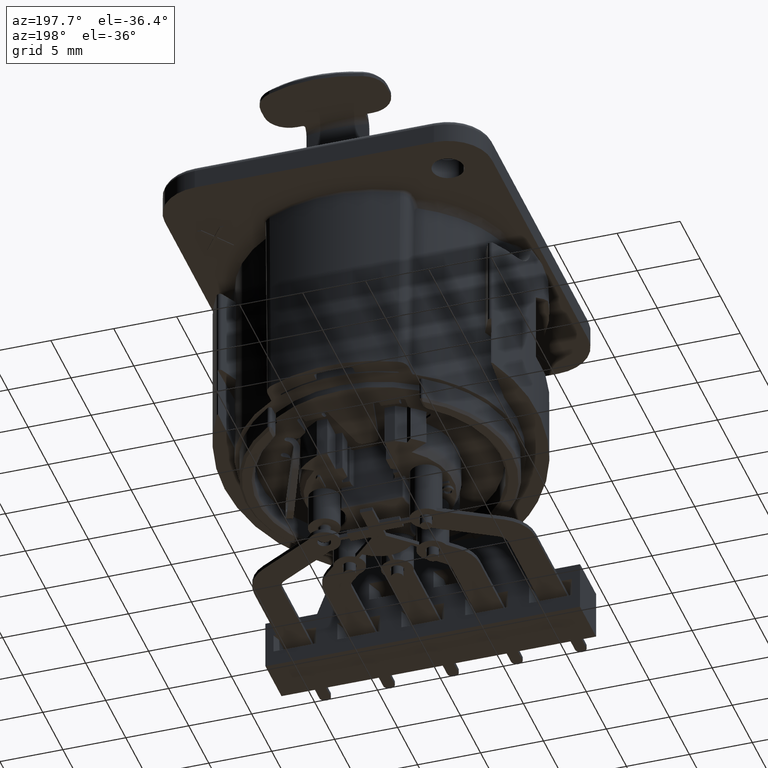
[diagram: clean part render]
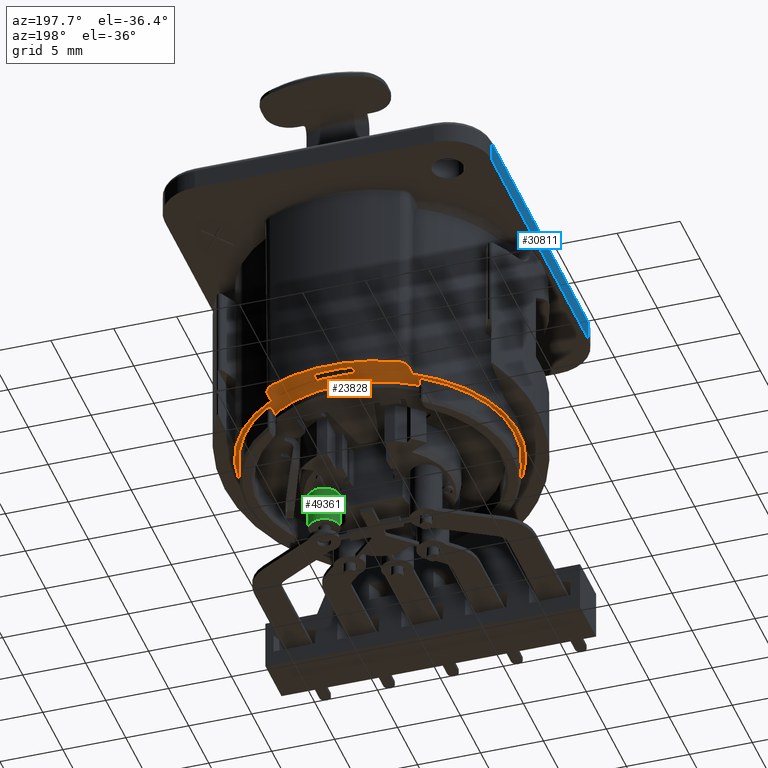
[diagram: same view with three faces highlighted in distinct colors, each labeled with its STEP entity id]
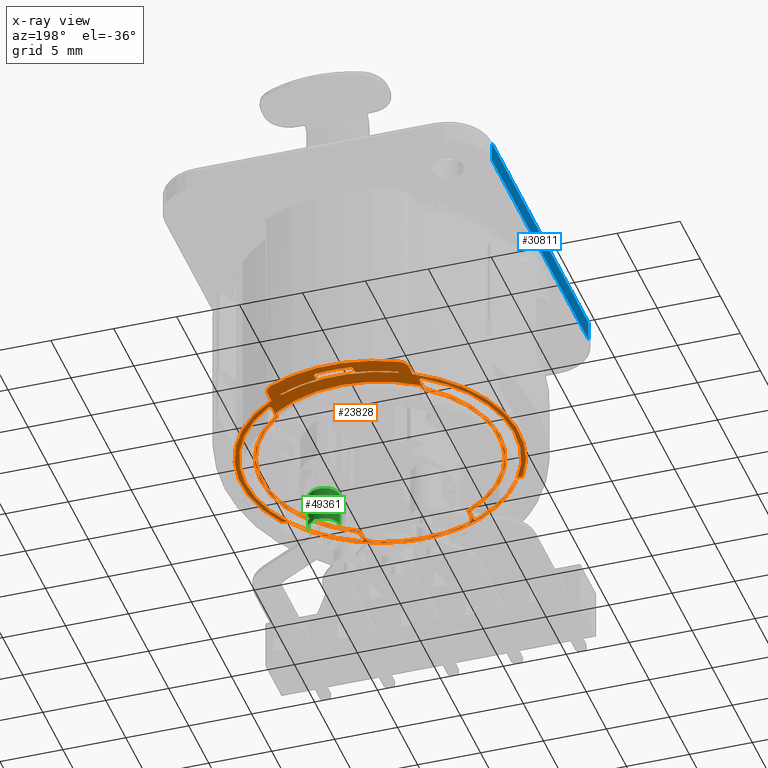
[diagram: x-ray of the same camera — body ghosted, the three highlighted faces saturated]
A machine part, auxiliary view with three faces highlighted in distinct colors.
The next image is the same camera in x-ray (body ghosted, the three faces saturated) — at least one of them is partly hidden behind the body in this view.
Their STEP definitions:

[orange] entity #23828 — the highlighted planar face has unit normal (0, 0, -1).
#9=CARTESIAN_POINT('',(0.E0,0.E0,-1.61E1));
#10=DIRECTION('',(0.E0,0.E0,1.E0));
#11=DIRECTION('',(4.258354678450E-1,9.048006157852E-1,0.E0));
#12=AXIS2_PLACEMENT_3D('',#9,#10,#11);
#14=DIRECTION('',(0.E0,-1.E0,6.113145145470E-14));
#15=VECTOR('',#14,5.230437417783E-1);
#16=CARTESIAN_POINT('',(-1.539754077808E0,1.156103249230E1,-1.61E1));
#17=LINE('',#16,#15);
#18=CARTESIAN_POINT('',(0.E0,9.E-1,-1.61E1));
#19=DIRECTION('',(0.E0,0.E0,1.E0));
#20=DIRECTION('',(1.246877463561E-1,9.921960319960E-1,0.E0));
#21=AXIS2_PLACEMENT_3D('',#18,#19,#20);
#23=DIRECTION('',(0.E0,1.E0,-6.113145145470E-14));
#24=VECTOR('',#23,5.230437417783E-1);
#25=CARTESIAN_POINT('',(1.539754077808E0,1.103798875052E1,-1.61E1));
#26=LINE('',#25,#24);
#27=DIRECTION('',(0.E0,1.E0,0.E0));
#28=VECTOR('',#27,9.404690249078E-1);
#29=CARTESIAN_POINT('',(-5.609497428569E0,9.504801134888E0,-1.61E1));
#30=LINE('',#29,#28);
#31=DIRECTION('',(0.E0,-1.E0,0.E0));
#32=VECTOR('',#31,9.404690249078E-1);
#33=CARTESIAN_POINT('',(5.609497428569E0,1.044527015980E1,-1.61E1));
#34=LINE('',#33,#32);
#35=CARTESIAN_POINT('',(5.044314075789E0,1.134580754619E1,-1.61E1));
#36=CARTESIAN_POINT('',(5.111700319880E0,1.131326651268E1,-1.61E1));
#37=CARTESIAN_POINT('',(5.236313421153E0,1.123529982837E1,-1.61E1));
#38=CARTESIAN_POINT('',(5.399343858419E0,1.107235001393E1,-1.61E1));
#39=CARTESIAN_POINT('',(5.517777364469E0,1.088349464585E1,-1.61E1));
#40=CARTESIAN_POINT('',(5.593418514380E0,1.066636128790E1,-1.61E1));
#41=CARTESIAN_POINT('',(5.609497428569E0,1.052017366136E1,-1.61E1));
#42=CARTESIAN_POINT('',(5.609497428569E0,1.044527015980E1,-1.61E1));
#44=CARTESIAN_POINT('',(0.E0,9.E-1,-1.61E1));
#45=DIRECTION('',(0.E0,0.E0,-1.E0));
#46=DIRECTION('',(-4.348546351574E-1,9.005006642319E-1,0.E0));
#47=AXIS2_PLACEMENT_3D('',#44,#45,#46);
#49=CARTESIAN_POINT('',(-5.609497428569E0,1.044527015980E1,-1.61E1));
#50=CARTESIAN_POINT('',(-5.609497428569E0,1.052009623410E1,-1.61E1));
#51=CARTESIAN_POINT('',(-5.593477728674E0,1.066620470709E1,-1.61E1));
#52=CARTESIAN_POINT('',(-5.517636581233E0,1.088386509639E1,-1.61E1));
#53=CARTESIAN_POINT('',(-5.399071468207E0,1.107263791928E1,-1.61E1));
#54=CARTESIAN_POINT('',(-5.236428528262E0,1.123517851199E1,-1.61E1));
#55=CARTESIAN_POINT('',(-5.111770075344E0,1.131323284866E1,-1.61E1));
#56=CARTESIAN_POINT('',(-5.044313930797E0,1.134580763732E1,-1.61E1));
#58=DIRECTION('',(0.E0,1.E0,0.E0));
#59=VECTOR('',#58,8.474999512721E-1);
#60=CARTESIAN_POINT('',(-5.85E0,7.725085377348E0,-1.61E1));
#61=LINE('',#60,#59);
#62=CARTESIAN_POINT('',(0.E0,0.E0,-1.61E1));
#63=DIRECTION('',(0.E0,0.E0,1.E0));
#64=DIRECTION('',(-6.349972204154E-1,7.725144206192E-1,0.E0));
#65=AXIS2_PLACEMENT_3D('',#62,#63,#64);
#67=DIRECTION('',(0.E0,1.E0,0.E0));
#68=VECTOR('',#67,7.094857101120E-1);
#69=CARTESIAN_POINT('',(-4.35E0,-9.454582372245E0,-1.61E1));
#70=LINE('',#69,#68);
#71=CARTESIAN_POINT('',(0.E0,0.E0,-1.61E1));
#72=DIRECTION('',(0.E0,0.E0,-1.E0));
#73=DIRECTION('',(-5.789473684211E-1,8.153649149910E-1,0.E0));
#74=AXIS2_PLACEMENT_3D('',#71,#72,#73);
#76=CARTESIAN_POINT('',(5.5E0,7.745966692415E0,-1.61E1));
#77=DIRECTION('',(0.E0,0.E0,-1.E0));
#78=DIRECTION('',(5.789473684211E-1,8.153649149910E-1,0.E0));
#79=AXIS2_PLACEMENT_3D('',#76,#77,#78);
#81=DIRECTION('',(0.E0,-1.E0,0.E0));
#82=VECTOR('',#81,1.719568561392E-1);
#83=CARTESIAN_POINT('',(5.8E0,7.745966692415E0,-1.61E1));
#84=LINE('',#83,#82);
#85=CARTESIAN_POINT('',(6.1E0,7.574009836276E0,-1.61E1));
#86=DIRECTION('',(0.E0,0.E0,1.E0));
#87=DIRECTION('',(-1.E0,0.E0,0.E0));
#88=AXIS2_PLACEMENT_3D('',#85,#86,#87);
#90=CARTESIAN_POINT('',(0.E0,0.E0,-1.61E1));
#91=DIRECTION('',(0.E0,0.E0,-1.E0));
#92=DIRECTION('',(6.272493573265E-1,7.788184921620E-1,0.E0));
#93=AXIS2_PLACEMENT_3D('',#90,#91,#92);
#95=CARTESIAN_POINT('',(4.6E0,-8.568291836767E0,-1.61E1));
#96=DIRECTION('',(0.E0,0.E0,1.E0));
#97=DIRECTION('',(-4.730077120823E-1,8.810582865570E-1,0.E0));
#98=AXIS2_PLACEMENT_3D('',#95,#96,#97);
#100=DIRECTION('',(0.E0,-1.E0,0.E0));
#101=VECTOR('',#100,5.531115640266E-1);
#102=CARTESIAN_POINT('',(4.3E0,-8.568291836767E0,-1.61E1));
#103=LINE('',#102,#101);
#104=CARTESIAN_POINT('',(3.3E0,-9.121403400793E0,-1.61E1));
#105=DIRECTION('',(0.E0,0.E0,-1.E0));
#106=DIRECTION('',(1.E0,0.E0,0.E0));
#107=AXIS2_PLACEMENT_3D('',#104,#105,#106);
#109=CARTESIAN_POINT('',(-3.3E0,-9.121403400793E0,-1.61E1));
#110=DIRECTION('',(0.E0,0.E0,-1.E0));
#111=DIRECTION('',(-3.402070752952E-1,-9.403505441691E-1,0.E0));
#112=AXIS2_PLACEMENT_3D('',#109,#110,#111);
#114=DIRECTION('',(0.E0,1.E0,0.E0));
#115=VECTOR('',#114,5.531115640266E-1);
#116=CARTESIAN_POINT('',(-4.3E0,-9.121403400793E0,-1.61E1));
#117=LINE('',#116,#115);
#118=CARTESIAN_POINT('',(-4.6E0,-8.568291836767E0,-1.61E1));
#119=DIRECTION('',(0.E0,0.E0,1.E0));
#120=DIRECTION('',(1.E0,0.E0,0.E0));
#121=AXIS2_PLACEMENT_3D('',#118,#119,#120);
#123=CARTESIAN_POINT('',(0.E0,0.E0,-1.61E1));
#124=DIRECTION('',(0.E0,0.E0,-1.E0));
#125=DIRECTION('',(-4.730077120823E-1,-8.810582865570E-1,0.E0));
#126=AXIS2_PLACEMENT_3D('',#123,#124,#125);
#128=CARTESIAN_POINT('',(-6.1E0,7.574009836276E0,-1.61E1));
#129=DIRECTION('',(0.E0,0.E0,1.E0));
#130=DIRECTION('',(6.272493573265E-1,-7.788184921620E-1,0.E0));
#131=AXIS2_PLACEMENT_3D('',#128,#129,#130);
#133=DIRECTION('',(0.E0,1.E0,0.E0));
#134=VECTOR('',#133,1.719568561392E-1);
#135=CARTESIAN_POINT('',(-5.8E0,7.574009836276E0,-1.61E1));
#136=LINE('',#135,#134);
#137=CARTESIAN_POINT('',(-5.5E0,7.745966692415E0,-1.61E1));
#138=DIRECTION('',(0.E0,0.E0,-1.E0));
#139=DIRECTION('',(-1.E0,0.E0,0.E0));
#140=AXIS2_PLACEMENT_3D('',#137,#138,#139);
#142=DIRECTION('',(0.E0,-1.E0,0.E0));
#143=VECTOR('',#142,7.094857101120E-1);
#144=CARTESIAN_POINT('',(4.35E0,-8.745096662133E0,-1.61E1));
#145=LINE('',#144,#143);
#146=CARTESIAN_POINT('',(0.E0,0.E0,-1.61E1));
#147=DIRECTION('',(0.E0,0.E0,1.E0));
#148=DIRECTION('',(4.849960781204E-1,-8.745163258669E-1,0.E0));
#149=AXIS2_PLACEMENT_3D('',#146,#147,#148);
#151=DIRECTION('',(0.E0,-1.E0,0.E0));
#152=VECTOR('',#151,8.474999512721E-1);
#153=CARTESIAN_POINT('',(5.85E0,8.572585328620E0,-1.61E1));
#154=LINE('',#153,#152);
#220=CARTESIAN_POINT('',(4.699798227575E0,9.985970290111E0,-1.61E1));
#222=CARTESIAN_POINT('',(4.699798227575E0,9.985970290111E0,-1.61E1));
#223=CARTESIAN_POINT('',(4.698661823217E0,1.001124814441E1,-1.61E1));
#224=CARTESIAN_POINT('',(4.687813458600E0,1.005786153870E1,-1.61E1));
#225=CARTESIAN_POINT('',(4.645078979001E0,1.012113313502E1,-1.61E1));
#226=CARTESIAN_POINT('',(4.605542113592E0,1.014877699794E1,-1.61E1));
#227=CARTESIAN_POINT('',(4.582227094572E0,1.015929295745E1,-1.61E1));
#246=CARTESIAN_POINT('',(0.E0,0.E0,-1.61E1));
#247=DIRECTION('',(0.E0,0.E0,-1.E0));
#248=DIRECTION('',(5.082607478455E-1,8.612032351307E-1,0.E0));
#249=AXIS2_PLACEMENT_3D('',#246,#247,#248);
#279=CARTESIAN_POINT('',(0.E0,0.E0,-1.61E1));
#280=DIRECTION('',(0.E0,0.E0,-1.E0));
#281=DIRECTION('',(-8.671981930823E-1,-4.979631451371E-1,0.E0));
#282=AXIS2_PLACEMENT_3D('',#279,#280,#281);
#630=DIRECTION('',(1.E0,1.170303486048E-12,9.269730582556E-14));
#631=VECTOR('',#630,3.832596478571E-1);
#632=CARTESIAN_POINT('',(-9.570965404618E0,-5.495846362344E0,-1.61E1));
#633=LINE('',#632,#631);
#657=DIRECTION('',(1.E0,-1.167986053402E-12,-9.269730582556E-14));
#658=VECTOR('',#657,3.832596478571E-1);
#659=CARTESIAN_POINT('',(9.187705756761E0,-5.495846362344E0,-1.61E1));
#660=LINE('',#659,#658);
#2566=CARTESIAN_POINT('',(0.E0,-2.E-1,-1.61E1));
#2567=DIRECTION('',(0.E0,0.E0,1.E0));
#2568=DIRECTION('',(-8.663795285007E-1,-4.993861357656E-1,0.E0));
#2569=AXIS2_PLACEMENT_3D('',#2566,#2567,#2568);
#3272=CARTESIAN_POINT('',(-5.609497428569E0,9.504801134888E0,-1.61E1));
#3655=CARTESIAN_POINT('',(5.609497428569E0,9.504801134888E0,-1.61E1));
#12737=CARTESIAN_POINT('',(4.582227094572E0,1.015929295745E1,-1.61E1));
#12743=CARTESIAN_POINT('',(0.E0,0.E0,-1.61E1));
#12744=DIRECTION('',(0.E0,0.E0,1.E0));
#12745=DIRECTION('',(4.111513745860E-1,9.115670832013E-1,0.E0));
#12746=AXIS2_PLACEMENT_3D('',#12743,#12744,#12745);
#12753=CARTESIAN_POINT('',(0.E0,0.E0,-1.61E1));
#12754=DIRECTION('',(0.E0,0.E0,1.E0));
#12755=DIRECTION('',(-1.381581507640E-1,9.904101803685E-1,0.E0));
#12756=AXIS2_PLACEMENT_3D('',#12753,#12754,#12755);
#12758=CARTESIAN_POINT('',(-4.582227145696E0,1.015929292136E1,-1.61E1));
#12868=CARTESIAN_POINT('',(1.539754077808E0,1.156103249230E1,-1.61E1));
#12869=CARTESIAN_POINT('',(1.539754077809E0,1.158613030402E1,-1.61E1));
#12870=CARTESIAN_POINT('',(1.530985323207E0,1.163283289599E1,-1.61E1));
#12871=CARTESIAN_POINT('',(1.492772841865E0,1.169676458114E1,-1.61E1));
#12872=CARTESIAN_POINT('',(1.435041961022E0,1.174155106445E1,-1.61E1));
#12873=CARTESIAN_POINT('',(1.389685451212E0,1.175631156638E1,-1.61E1));
#12874=CARTESIAN_POINT('',(1.364690676374E0,1.175945262122E1,-1.61E1));
#12895=CARTESIAN_POINT('',(-1.364690578159E0,1.175945265224E1,-1.61E1));
#12896=CARTESIAN_POINT('',(-1.389643914468E0,1.175631680492E1,-1.61E1));
#12897=CARTESIAN_POINT('',(-1.434949589008E0,1.174169633368E1,-1.61E1));
#12898=CARTESIAN_POINT('',(-1.493272117536E0,1.169618810914E1,-1.61E1));
#12899=CARTESIAN_POINT('',(-1.530819694211E0,1.163302446739E1,-1.61E1));
#12900=CARTESIAN_POINT('',(-1.539754077809E0,1.158620925261E1,-1.61E1));
#12901=CARTESIAN_POINT('',(-1.539754077808E0,1.156103249230E1,-1.61E1));
#12903=CARTESIAN_POINT('',(-4.699798227575E0,9.985970290111E0,-1.61E1));
#12910=CARTESIAN_POINT('',(-4.582227145696E0,1.015929292136E1,-1.61E1));
#12911=CARTESIAN_POINT('',(-4.605419305442E0,1.014883237604E1,-1.61E1));
#12912=CARTESIAN_POINT('',(-4.644846639622E0,1.012137124310E1,-1.61E1));
#12913=CARTESIAN_POINT('',(-4.687792022220E0,1.005797565911E1,-1.61E1));
#12914=CARTESIAN_POINT('',(-4.698659534809E0,1.001129904709E1,-1.61E1));
#12915=CARTESIAN_POINT('',(-4.699798227575E0,9.985970290111E0,-1.61E1));
#12957=CARTESIAN_POINT('',(-4.636740679148E0,-9.634761787363E0,-1.61E1));
#12958=CARTESIAN_POINT('',(-4.611306748229E0,-9.647001897160E0,-1.61E1));
#12959=CARTESIAN_POINT('',(-4.559961948753E0,-9.659565054700E0,-1.61E1));
#12960=CARTESIAN_POINT('',(-4.477779440617E0,-9.647089573724E0,-1.61E1));
#12961=CARTESIAN_POINT('',(-4.407844705591E0,-9.603143740863E0,-1.61E1));
#12962=CARTESIAN_POINT('',(-4.360963106711E0,-9.534547528451E0,-1.61E1));
#12963=CARTESIAN_POINT('',(-4.349999999113E0,-9.482820595942E0,-1.61E1));
#12964=CARTESIAN_POINT('',(-4.35E0,-9.454582372245E0,-1.61E1));
#13086=CARTESIAN_POINT('',(6.165332335243E0,8.735941625365E0,
-1.610000000001E1));
#13087=CARTESIAN_POINT('',(6.144699658589E0,8.750502998831E0,
-1.610000000001E1));
#13088=CARTESIAN_POINT('',(6.101200057495E0,8.770339919505E0,
-1.609999999999E1));
#13089=CARTESIAN_POINT('',(6.026595137833E0,8.775790264508E0,-1.61E1));
#13090=CARTESIAN_POINT('',(5.956037039782E0,8.754078419615E0,-1.61E1));
#13091=CARTESIAN_POINT('',(5.897494103293E0,8.708956936983E0,-1.61E1));
#13092=CARTESIAN_POINT('',(5.858885251557E0,8.644839290073E0,-1.61E1));
#13093=CARTESIAN_POINT('',(5.849999997804E0,8.597847252888E0,-1.61E1));
#13094=CARTESIAN_POINT('',(5.85E0,8.572585328620E0,-1.61E1));
#13126=CARTESIAN_POINT('',(5.85E0,7.725085377348E0,-1.61E1));
#13127=CARTESIAN_POINT('',(5.85E0,7.687626382980E0,-1.61E1));
#13128=CARTESIAN_POINT('',(5.858207133752E0,7.614816611169E0,-1.61E1));
#13129=CARTESIAN_POINT('',(5.894223159463E0,7.509705702808E0,-1.61E1));
#13130=CARTESIAN_POINT('',(5.952432933101E0,7.415354519965E0,-1.61E1));
#13131=CARTESIAN_POINT('',(6.003498372901E0,7.362704266258E0,-1.61E1));
#13132=CARTESIAN_POINT('',(6.032473593947E0,7.338886995883E0,-1.61E1));
#13175=CARTESIAN_POINT('',(4.607462742144E0,-8.307905095736E0,-1.61E1));
#13176=CARTESIAN_POINT('',(4.567691234834E0,-8.329961888155E0,-1.61E1));
#13177=CARTESIAN_POINT('',(4.497113834774E0,-8.382811955775E0,-1.61E1));
#13178=CARTESIAN_POINT('',(4.413994618368E0,-8.488241345883E0,-1.61E1));
#13179=CARTESIAN_POINT('',(4.361894061411E0,-8.612503085923E0,-1.61E1));
#13180=CARTESIAN_POINT('',(4.35E0,-8.699715027442E0,-1.61E1));
#13181=CARTESIAN_POINT('',(4.35E0,-8.745096662133E0,-1.61E1));
#13200=CARTESIAN_POINT('',(4.35E0,-9.454582372245E0,-1.61E1));
#13201=CARTESIAN_POINT('',(4.349999999113E0,-9.482820595942E0,-1.61E1));
#13202=CARTESIAN_POINT('',(4.360963106711E0,-9.534547528451E0,-1.61E1));
#13203=CARTESIAN_POINT('',(4.407844705591E0,-9.603143740863E0,-1.61E1));
#13204=CARTESIAN_POINT('',(4.477779440617E0,-9.647089573724E0,-1.61E1));
#13205=CARTESIAN_POINT('',(4.559961948753E0,-9.659565054700E0,-1.61E1));
#13206=CARTESIAN_POINT('',(4.611306748229E0,-9.647001897160E0,-1.61E1));
#13207=CARTESIAN_POINT('',(4.636740679148E0,-9.634761787363E0,-1.61E1));
#13214=CARTESIAN_POINT('',(0.E0,0.E0,-1.61E1));
#13215=DIRECTION('',(0.E0,0.E0,-1.E0));
#13216=DIRECTION('',(5.766073721627E-1,8.170213818301E-1,0.E0));
#13217=AXIS2_PLACEMENT_3D('',#13214,#13215,#13216);
#13236=CARTESIAN_POINT('',(0.E0,0.E0,-1.61E1));
#13237=DIRECTION('',(0.E0,0.E0,-1.E0));
#13238=DIRECTION('',(-4.336471602406E-1,-9.010827600255E-1,0.E0));
#13239=AXIS2_PLACEMENT_3D('',#13236,#13237,#13238);
#13274=CARTESIAN_POINT('',(-5.85E0,8.572585328620E0,-1.61E1));
#13275=CARTESIAN_POINT('',(-5.849999997804E0,8.597847252888E0,-1.61E1));
#13276=CARTESIAN_POINT('',(-5.858885251557E0,8.644839290072E0,-1.61E1));
#13277=CARTESIAN_POINT('',(-5.897494103294E0,8.708956936982E0,-1.61E1));
#13278=CARTESIAN_POINT('',(-5.956037039782E0,8.754078419614E0,-1.61E1));
#13279=CARTESIAN_POINT('',(-6.026595137833E0,8.775790264507E0,-1.61E1));
#13280=CARTESIAN_POINT('',(-6.101200057496E0,8.770339919504E0,
-1.609999999999E1));
#13281=CARTESIAN_POINT('',(-6.144699658589E0,8.750502998830E0,
-1.610000000001E1));
#13282=CARTESIAN_POINT('',(-6.165332335243E0,8.735941625365E0,
-1.610000000001E1));
#13331=CARTESIAN_POINT('',(-4.35E0,-8.745096662133E0,-1.61E1));
#13332=CARTESIAN_POINT('',(-4.35E0,-8.699715027442E0,-1.61E1));
#13333=CARTESIAN_POINT('',(-4.361894061411E0,-8.612503085923E0,-1.61E1));
#13334=CARTESIAN_POINT('',(-4.413994618368E0,-8.488241345883E0,-1.61E1));
#13335=CARTESIAN_POINT('',(-4.497113834774E0,-8.382811955775E0,-1.61E1));
#13336=CARTESIAN_POINT('',(-4.567691234834E0,-8.329961888155E0,-1.61E1));
#13337=CARTESIAN_POINT('',(-4.607462742144E0,-8.307905095736E0,-1.61E1));
#13347=CARTESIAN_POINT('',(-6.032473593947E0,7.338886995883E0,-1.61E1));
#13348=CARTESIAN_POINT('',(-6.003498372901E0,7.362704266258E0,-1.61E1));
#13349=CARTESIAN_POINT('',(-5.952432933101E0,7.415354519965E0,-1.61E1));
#13350=CARTESIAN_POINT('',(-5.894223159463E0,7.509705702808E0,-1.61E1));
#13351=CARTESIAN_POINT('',(-5.858207133752E0,7.614816611169E0,-1.61E1));
#13352=CARTESIAN_POINT('',(-5.85E0,7.687626382980E0,-1.61E1));
#13353=CARTESIAN_POINT('',(-5.85E0,7.725085377348E0,-1.61E1));
#13401=CARTESIAN_POINT('',(0.E0,0.E0,-1.61E1));
#13402=DIRECTION('',(0.E0,0.E0,-1.E0));
#13403=DIRECTION('',(3.402062687192E-1,-9.403508359778E-1,0.E0));
#13404=AXIS2_PLACEMENT_3D('',#13401,#13402,#13403);
#19267=CARTESIAN_POINT('',(-6.032473593947E0,7.338886995883E0,-1.61E1));
#19268=CARTESIAN_POINT('',(-4.607462742144E0,-8.307905095736E0,-1.61E1));
#19269=VERTEX_POINT('',#19267);
#19270=VERTEX_POINT('',#19268);
#19271=CARTESIAN_POINT('',(4.607462742144E0,-8.307905095736E0,-1.61E1));
#19272=CARTESIAN_POINT('',(6.032473593947E0,7.338886995883E0,-1.61E1));
#19273=VERTEX_POINT('',#19271);
#19274=VERTEX_POINT('',#19272);
#19275=CARTESIAN_POINT('',(-4.35E0,-9.454582372245E0,-1.61E1));
#19276=CARTESIAN_POINT('',(-4.35E0,-8.745096662133E0,-1.61E1));
#19277=VERTEX_POINT('',#19275);
#19278=VERTEX_POINT('',#19276);
#19279=CARTESIAN_POINT('',(-5.85E0,7.725085377348E0,-1.61E1));
#19280=CARTESIAN_POINT('',(-5.85E0,8.572585328620E0,-1.61E1));
#19281=VERTEX_POINT('',#19279);
#19282=VERTEX_POINT('',#19280);
#19283=CARTESIAN_POINT('',(5.85E0,8.572585328620E0,-1.61E1));
#19284=CARTESIAN_POINT('',(5.85E0,7.725085377348E0,-1.61E1));
#19285=VERTEX_POINT('',#19283);
#19286=VERTEX_POINT('',#19284);
#19287=CARTESIAN_POINT('',(4.35E0,-8.745096662133E0,-1.61E1));
#19288=CARTESIAN_POINT('',(4.35E0,-9.454582372245E0,-1.61E1));
#19289=VERTEX_POINT('',#19287);
#19290=VERTEX_POINT('',#19288);
#19403=VERTEX_POINT('',#49);
#19404=VERTEX_POINT('',#56);
#19405=VERTEX_POINT('',#35);
#19406=VERTEX_POINT('',#42);
#19419=VERTEX_POINT('',#12895);
#19420=VERTEX_POINT('',#12901);
#19421=VERTEX_POINT('',#12868);
#19422=VERTEX_POINT('',#12874);
#19427=VERTEX_POINT('',#12737);
#19432=VERTEX_POINT('',#12758);
#19433=CARTESIAN_POINT('',(1.539754077808E0,1.103798875052E1,-1.61E1));
#19434=VERTEX_POINT('',#19433);
#19435=CARTESIAN_POINT('',(-1.539754077808E0,1.103798875052E1,-1.61E1));
#19436=VERTEX_POINT('',#19435);
#22821=CARTESIAN_POINT('',(-4.458097686375E0,-8.303974350799E0,-1.61E1));
#22822=CARTESIAN_POINT('',(-5.911825192802E0,7.340364288627E0,-1.61E1));
#22823=VERTEX_POINT('',#22821);
#22824=VERTEX_POINT('',#22822);
#22825=CARTESIAN_POINT('',(5.911825192802E0,7.340364288627E0,-1.61E1));
#22826=CARTESIAN_POINT('',(4.458097686375E0,-8.303974350799E0,-1.61E1));
#22827=VERTEX_POINT('',#22825);
#22828=VERTEX_POINT('',#22826);
#22829=CARTESIAN_POINT('',(5.8E0,7.745966692415E0,-1.61E1));
#22830=CARTESIAN_POINT('',(5.8E0,7.574009836276E0,-1.61E1));
#22831=VERTEX_POINT('',#22829);
#22832=VERTEX_POINT('',#22830);
#22833=CARTESIAN_POINT('',(-5.8E0,7.574009836276E0,-1.61E1));
#22834=CARTESIAN_POINT('',(-5.8E0,7.745966692415E0,-1.61E1));
#22835=VERTEX_POINT('',#22833);
#22836=VERTEX_POINT('',#22834);
#22841=CARTESIAN_POINT('',(4.3E0,-8.568291836767E0,-1.61E1));
#22842=CARTESIAN_POINT('',(4.3E0,-9.121403400793E0,-1.61E1));
#22843=VERTEX_POINT('',#22841);
#22844=VERTEX_POINT('',#22842);
#22845=CARTESIAN_POINT('',(-4.3E0,-9.121403400793E0,-1.61E1));
#22846=CARTESIAN_POINT('',(-4.3E0,-8.568291836767E0,-1.61E1));
#22847=VERTEX_POINT('',#22845);
#22848=VERTEX_POINT('',#22846);
#22867=CARTESIAN_POINT('',(-5.673684210526E0,7.990576166912E0,-1.61E1));
#22868=VERTEX_POINT('',#22867);
#22869=CARTESIAN_POINT('',(5.673684210526E0,7.990576166912E0,-1.61E1));
#22870=VERTEX_POINT('',#22869);
#23348=CARTESIAN_POINT('',(6.165332332504E0,8.735941621508E0,-1.61E1));
#23349=CARTESIAN_POINT('',(4.636740678327E0,-9.634761785667E0,-1.61E1));
#23350=VERTEX_POINT('',#23348);
#23351=VERTEX_POINT('',#23349);
#23352=CARTESIAN_POINT('',(3.640207075295E0,-1.006175394496E1,-1.61E1));
#23353=CARTESIAN_POINT('',(-3.640207075295E0,-1.006175394496E1,-1.61E1));
#23354=VERTEX_POINT('',#23352);
#23355=VERTEX_POINT('',#23353);
#23356=CARTESIAN_POINT('',(-4.636740678327E0,-9.634761785667E0,-1.61E1));
#23357=CARTESIAN_POINT('',(-6.165332332504E0,8.735941621507E0,-1.61E1));
#23358=VERTEX_POINT('',#23356);
#23359=VERTEX_POINT('',#23357);
#23395=VERTEX_POINT('',#3655);
#23396=VERTEX_POINT('',#3272);
#23408=VERTEX_POINT('',#220);
#23409=VERTEX_POINT('',#12903);
#23443=CARTESIAN_POINT('',(-9.570965404618E0,-5.495846362344E0,-1.61E1));
#23444=CARTESIAN_POINT('',(-9.187705756761E0,-5.495846362344E0,-1.61E1));
#23445=VERTEX_POINT('',#23443);
#23446=VERTEX_POINT('',#23444);
#23447=CARTESIAN_POINT('',(9.187705756761E0,-5.495846362344E0,-1.61E1));
#23448=CARTESIAN_POINT('',(9.570965404618E0,-5.495846362344E0,-1.61E1));
#23449=VERTEX_POINT('',#23447);
#23450=VERTEX_POINT('',#23448);
#23709=CARTESIAN_POINT('',(0.E0,0.E0,-1.61E1));
#23710=DIRECTION('',(0.E0,0.E0,-1.E0));
#23711=DIRECTION('',(0.E0,-1.E0,0.E0));
#23712=AXIS2_PLACEMENT_3D('',#23709,#23710,#23711);
#23713=PLANE('',#23712);
#23715=ORIENTED_EDGE('',*,*,#23714,.F.);
#23717=ORIENTED_EDGE('',*,*,#23716,.F.);
#23719=ORIENTED_EDGE('',*,*,#23718,.T.);
#23721=ORIENTED_EDGE('',*,*,#23720,.T.);
#23723=ORIENTED_EDGE('',*,*,#23722,.T.);
#23725=ORIENTED_EDGE('',*,*,#23724,.F.);
#23727=ORIENTED_EDGE('',*,*,#23726,.F.);
#23729=ORIENTED_EDGE('',*,*,#23728,.F.);
#23731=ORIENTED_EDGE('',*,*,#23730,.F.);
#23733=ORIENTED_EDGE('',*,*,#23732,.F.);
#23734=EDGE_LOOP('',(#23715,#23717,#23719,#23721,#23723,#23725,#23727,#23729,
#23731,#23733));
#23735=FACE_OUTER_BOUND('',#23734,.F.);
#23737=ORIENTED_EDGE('',*,*,#23736,.F.);
#23739=ORIENTED_EDGE('',*,*,#23738,.T.);
#23741=ORIENTED_EDGE('',*,*,#23740,.F.);
#23743=ORIENTED_EDGE('',*,*,#23742,.F.);
#23745=ORIENTED_EDGE('',*,*,#23744,.F.);
#23747=ORIENTED_EDGE('',*,*,#23746,.F.);
#23749=ORIENTED_EDGE('',*,*,#23748,.F.);
#23751=ORIENTED_EDGE('',*,*,#23750,.F.);
#23753=ORIENTED_EDGE('',*,*,#23752,.F.);
#23755=ORIENTED_EDGE('',*,*,#23754,.F.);
#23756=EDGE_LOOP('',(#23737,#23739,#23741,#23743,#23745,#23747,#23749,#23751,
#23753,#23755));
#23757=FACE_BOUND('',#23756,.F.);
#23759=ORIENTED_EDGE('',*,*,#23758,.F.);
#23761=ORIENTED_EDGE('',*,*,#23760,.T.);
#23763=ORIENTED_EDGE('',*,*,#23762,.F.);
#23765=ORIENTED_EDGE('',*,*,#23764,.F.);
#23767=ORIENTED_EDGE('',*,*,#23766,.F.);
#23769=ORIENTED_EDGE('',*,*,#23768,.T.);
#23771=ORIENTED_EDGE('',*,*,#23770,.F.);
#23773=ORIENTED_EDGE('',*,*,#23772,.F.);
#23774=EDGE_LOOP('',(#23759,#23761,#23763,#23765,#23767,#23769,#23771,#23773));
#23775=FACE_BOUND('',#23774,.F.);
#23777=ORIENTED_EDGE('',*,*,#23776,.T.);
#23779=ORIENTED_EDGE('',*,*,#23778,.T.);
#23781=ORIENTED_EDGE('',*,*,#23780,.T.);
#23783=ORIENTED_EDGE('',*,*,#23782,.T.);
#23785=ORIENTED_EDGE('',*,*,#23784,.T.);
#23787=ORIENTED_EDGE('',*,*,#23786,.T.);
#23789=ORIENTED_EDGE('',*,*,#23788,.T.);
#23791=ORIENTED_EDGE('',*,*,#23790,.T.);
#23793=ORIENTED_EDGE('',*,*,#23792,.T.);
#23795=ORIENTED_EDGE('',*,*,#23794,.T.);
#23797=ORIENTED_EDGE('',*,*,#23796,.T.);
#23799=ORIENTED_EDGE('',*,*,#23798,.T.);
#23801=ORIENTED_EDGE('',*,*,#23800,.T.);
#23803=ORIENTED_EDGE('',*,*,#23802,.T.);
#23805=ORIENTED_EDGE('',*,*,#23804,.T.);
#23807=ORIENTED_EDGE('',*,*,#23806,.T.);
#23808=EDGE_LOOP('',(#23777,#23779,#23781,#23783,#23785,#23787,#23789,#23791,
#23793,#23795,#23797,#23799,#23801,#23803,#23805,#23807));
#23809=FACE_BOUND('',#23808,.F.);
#23811=ORIENTED_EDGE('',*,*,#23810,.F.);
#23813=ORIENTED_EDGE('',*,*,#23812,.T.);
#23815=ORIENTED_EDGE('',*,*,#23814,.F.);
#23817=ORIENTED_EDGE('',*,*,#23816,.F.);
#23819=ORIENTED_EDGE('',*,*,#23818,.F.);
#23821=ORIENTED_EDGE('',*,*,#23820,.T.);
#23823=ORIENTED_EDGE('',*,*,#23822,.F.);
#23825=ORIENTED_EDGE('',*,*,#23824,.F.);
#23826=EDGE_LOOP('',(#23811,#23813,#23815,#23817,#23819,#23821,#23823,#23825));
#23827=FACE_BOUND('',#23826,.F.);
#23828=ADVANCED_FACE('',(#23735,#23757,#23775,#23809,#23827),#23713,.T.);
#13=CIRCLE('',#12,1.103665284472E1);
#22=CIRCLE('',#21,1.094486600533E1);
#43=B_SPLINE_CURVE_WITH_KNOTS('',3,(#35,#36,#37,#38,#39,#40,#41,#42),
.UNSPECIFIED.,.F.,.F.,(4,1,1,1,1,4),(0.E0,2.E-1,4.E-1,6.E-1,8.E-1,1.E0),
.UNSPECIFIED.);
#48=CIRCLE('',#47,1.16E1);
#57=B_SPLINE_CURVE_WITH_KNOTS('',3,(#49,#50,#51,#52,#53,#54,#55,#56),
.UNSPECIFIED.,.F.,.F.,(4,1,1,1,1,4),(0.E0,2.E-1,4.E-1,6.E-1,8.E-1,1.E0),
.UNSPECIFIED.);
#66=CIRCLE('',#65,9.5E0);
#75=CIRCLE('',#74,9.8E0);
#80=CIRCLE('',#79,3.E-1);
#89=CIRCLE('',#88,3.E-1);
#94=CIRCLE('',#93,9.425E0);
#99=CIRCLE('',#98,3.E-1);
#108=CIRCLE('',#107,1.E0);
#113=CIRCLE('',#112,1.E0);
#122=CIRCLE('',#121,3.E-1);
#127=CIRCLE('',#126,9.425E0);
#132=CIRCLE('',#131,3.E-1);
#141=CIRCLE('',#140,3.E-1);
#150=CIRCLE('',#149,9.5E0);
#228=B_SPLINE_CURVE_WITH_KNOTS('',3,(#222,#223,#224,#225,#226,#227),
.UNSPECIFIED.,.F.,.F.,(4,1,1,4),(0.E0,3.333333333333E-1,6.666666666667E-1,1.E0),
.UNSPECIFIED.);
#250=CIRCLE('',#249,1.103665284472E1);
#283=CIRCLE('',#282,1.103665284472E1);
#2570=CIRCLE('',#2569,1.060471243205E1);
#12747=CIRCLE('',#12746,1.114486600533E1);
#12757=CIRCLE('',#12756,1.114486600533E1);
#12875=B_SPLINE_CURVE_WITH_KNOTS('',3,(#12868,#12869,#12870,#12871,#12872,
#12873,#12874),.UNSPECIFIED.,.F.,.F.,(4,1,1,1,4),(0.E0,2.5E-1,5.E-1,7.5E-1,
1.E0),.UNSPECIFIED.);
#12902=B_SPLINE_CURVE_WITH_KNOTS('',3,(#12895,#12896,#12897,#12898,#12899,
#12900,#12901),.UNSPECIFIED.,.F.,.F.,(4,1,1,1,4),(0.E0,2.5E-1,5.E-1,7.5E-1,
1.E0),.UNSPECIFIED.);
#12916=B_SPLINE_CURVE_WITH_KNOTS('',3,(#12910,#12911,#12912,#12913,#12914,
#12915),.UNSPECIFIED.,.F.,.F.,(4,1,1,4),(0.E0,3.333333333333E-1,
6.666666666667E-1,1.E0),.UNSPECIFIED.);
#12965=B_SPLINE_CURVE_WITH_KNOTS('',3,(#12957,#12958,#12959,#12960,#12961,
#12962,#12963,#12964),.UNSPECIFIED.,.F.,.F.,(4,1,1,1,1,4),(0.E0,2.E-1,4.E-1,
6.E-1,8.E-1,1.E0),.UNSPECIFIED.);
#13095=B_SPLINE_CURVE_WITH_KNOTS('',3,(#13086,#13087,#13088,#13089,#13090,
#13091,#13092,#13093,#13094),.UNSPECIFIED.,.F.,.F.,(4,1,1,1,1,1,4),(0.E0,
1.666666666667E-1,3.333333333333E-1,5.E-1,6.666666666667E-1,8.333333333333E-1,
1.E0),.UNSPECIFIED.);
#13133=B_SPLINE_CURVE_WITH_KNOTS('',3,(#13126,#13127,#13128,#13129,#13130,
#13131,#13132),.UNSPECIFIED.,.F.,.F.,(4,1,1,1,4),(0.E0,2.5E-1,5.E-1,7.5E-1,
1.E0),.UNSPECIFIED.);
#13182=B_SPLINE_CURVE_WITH_KNOTS('',3,(#13175,#13176,#13177,#13178,#13179,
#13180,#13181),.UNSPECIFIED.,.F.,.F.,(4,1,1,1,4),(0.E0,2.5E-1,5.E-1,7.5E-1,
1.E0),.UNSPECIFIED.);
#13208=B_SPLINE_CURVE_WITH_KNOTS('',3,(#13200,#13201,#13202,#13203,#13204,
#13205,#13206,#13207),.UNSPECIFIED.,.F.,.F.,(4,1,1,1,1,4),(0.E0,2.E-1,4.E-1,
6.E-1,8.E-1,1.E0),.UNSPECIFIED.);
#13218=CIRCLE('',#13217,1.069242716995E1);
#13240=CIRCLE('',#13239,1.069242716995E1);
#13283=B_SPLINE_CURVE_WITH_KNOTS('',3,(#13274,#13275,#13276,#13277,#13278,
#13279,#13280,#13281,#13282),.UNSPECIFIED.,.F.,.F.,(4,1,1,1,1,1,4),(0.E0,
1.666666666667E-1,3.333333333333E-1,5.E-1,6.666666666667E-1,8.333333333333E-1,
1.E0),.UNSPECIFIED.);
#13338=B_SPLINE_CURVE_WITH_KNOTS('',3,(#13331,#13332,#13333,#13334,#13335,
#13336,#13337),.UNSPECIFIED.,.F.,.F.,(4,1,1,1,4),(0.E0,2.5E-1,5.E-1,7.5E-1,
1.E0),.UNSPECIFIED.);
#13354=B_SPLINE_CURVE_WITH_KNOTS('',3,(#13347,#13348,#13349,#13350,#13351,
#13352,#13353),.UNSPECIFIED.,.F.,.F.,(4,1,1,1,4),(0.E0,2.5E-1,5.E-1,7.5E-1,
1.E0),.UNSPECIFIED.);
#13405=CIRCLE('',#13404,1.07E1);
#23714=EDGE_CURVE('',#23396,#19403,#30,.T.);
#23716=EDGE_CURVE('',#23445,#23396,#283,.T.);
#23718=EDGE_CURVE('',#23445,#23446,#633,.T.);
#23720=EDGE_CURVE('',#23446,#23449,#2570,.T.);
#23722=EDGE_CURVE('',#23449,#23450,#660,.T.);
#23724=EDGE_CURVE('',#23395,#23450,#250,.T.);
#23726=EDGE_CURVE('',#19406,#23395,#34,.T.);
#23728=EDGE_CURVE('',#19405,#19406,#43,.T.);
#23730=EDGE_CURVE('',#19404,#19405,#48,.T.);
#23732=EDGE_CURVE('',#19403,#19404,#57,.T.);
#23736=EDGE_CURVE('',#23408,#19427,#228,.T.);
#23738=EDGE_CURVE('',#23408,#23409,#13,.T.);
#23740=EDGE_CURVE('',#19432,#23409,#12916,.T.);
#23742=EDGE_CURVE('',#19436,#19432,#12757,.T.);
#23744=EDGE_CURVE('',#19420,#19436,#17,.T.);
#23746=EDGE_CURVE('',#19419,#19420,#12902,.T.);
#23748=EDGE_CURVE('',#19422,#19419,#22,.T.);
#23750=EDGE_CURVE('',#19421,#19422,#12875,.T.);
#23752=EDGE_CURVE('',#19434,#19421,#26,.T.);
#23754=EDGE_CURVE('',#19427,#19434,#12747,.T.);
#23758=EDGE_CURVE('',#23358,#19277,#12965,.T.);
#23760=EDGE_CURVE('',#23358,#23359,#13240,.T.);
#23762=EDGE_CURVE('',#19282,#23359,#13283,.T.);
#23764=EDGE_CURVE('',#19281,#19282,#61,.T.);
#23766=EDGE_CURVE('',#19269,#19281,#13354,.T.);
#23768=EDGE_CURVE('',#19269,#19270,#66,.T.);
#23770=EDGE_CURVE('',#19278,#19270,#13338,.T.);
#23772=EDGE_CURVE('',#19277,#19278,#70,.T.);
#23776=EDGE_CURVE('',#22868,#22870,#75,.T.);
#23778=EDGE_CURVE('',#22870,#22831,#80,.T.);
#23780=EDGE_CURVE('',#22831,#22832,#84,.T.);
#23782=EDGE_CURVE('',#22832,#22827,#89,.T.);
#23784=EDGE_CURVE('',#22827,#22828,#94,.T.);
#23786=EDGE_CURVE('',#22828,#22843,#99,.T.);
#23788=EDGE_CURVE('',#22843,#22844,#103,.T.);
#23790=EDGE_CURVE('',#22844,#23354,#108,.T.);
#23792=EDGE_CURVE('',#23354,#23355,#13405,.T.);
#23794=EDGE_CURVE('',#23355,#22847,#113,.T.);
#23796=EDGE_CURVE('',#22847,#22848,#117,.T.);
#23798=EDGE_CURVE('',#22848,#22823,#122,.T.);
#23800=EDGE_CURVE('',#22823,#22824,#127,.T.);
#23802=EDGE_CURVE('',#22824,#22835,#132,.T.);
#23804=EDGE_CURVE('',#22835,#22836,#136,.T.);
#23806=EDGE_CURVE('',#22836,#22868,#141,.T.);
#23810=EDGE_CURVE('',#23350,#19285,#13095,.T.);
#23812=EDGE_CURVE('',#23350,#23351,#13218,.T.);
#23814=EDGE_CURVE('',#19290,#23351,#13208,.T.);
#23816=EDGE_CURVE('',#19289,#19290,#145,.T.);
#23818=EDGE_CURVE('',#19273,#19289,#13182,.T.);
#23820=EDGE_CURVE('',#19273,#19274,#150,.T.);
#23822=EDGE_CURVE('',#19286,#19274,#13133,.T.);
#23824=EDGE_CURVE('',#19285,#19286,#154,.T.);

[blue] entity #30811 — the highlighted planar face has unit normal (1, 0, 0).
#1399=DIRECTION('',(0.E0,1.E0,0.E0));
#1400=VECTOR('',#1399,2.4E1);
#1401=CARTESIAN_POINT('',(-1.3E1,-1.11E1,0.E0));
#1402=LINE('',#1401,#1400);
#4807=DIRECTION('',(0.E0,-1.E0,0.E0));
#4808=VECTOR('',#4807,2.399999999934E1);
#4809=CARTESIAN_POINT('',(-1.3E1,1.289999999974E1,1.55E0));
#4810=LINE('',#4809,#4808);
#4811=DIRECTION('',(0.E0,-2.547261326600E-10,-1.E0));
#4812=VECTOR('',#4811,1.55E0);
#4813=CARTESIAN_POINT('',(-1.3E1,-1.109999999961E1,1.55E0));
#4814=LINE('',#4813,#4812);
#4820=DIRECTION('',(0.E0,1.685521972890E-10,-1.E0));
#4821=VECTOR('',#4820,1.55E0);
#4822=CARTESIAN_POINT('',(-1.3E1,1.289999999974E1,1.55E0));
#4823=LINE('',#4822,#4821);
#18813=CARTESIAN_POINT('',(-1.3E1,1.29E1,0.E0));
#18815=VERTEX_POINT('',#18813);
#18817=CARTESIAN_POINT('',(-1.3E1,-1.11E1,0.E0));
#18818=VERTEX_POINT('',#18817);
#19369=CARTESIAN_POINT('',(-1.3E1,1.29E1,1.55E0));
#19370=VERTEX_POINT('',#19369);
#19373=CARTESIAN_POINT('',(-1.3E1,-1.109999999961E1,1.55E0));
#19374=VERTEX_POINT('',#19373);
#30799=CARTESIAN_POINT('',(-1.3E1,-1.11E1,4.7E0));
#30800=DIRECTION('',(1.E0,0.E0,0.E0));
#30801=DIRECTION('',(0.E0,1.E0,0.E0));
#30802=AXIS2_PLACEMENT_3D('',#30799,#30800,#30801);
#30803=PLANE('',#30802);
#30804=ORIENTED_EDGE('',*,*,#25859,.T.);
#30805=ORIENTED_EDGE('',*,*,#30794,.T.);
#30806=ORIENTED_EDGE('',*,*,#24965,.T.);
#30808=ORIENTED_EDGE('',*,*,#30807,.F.);
#30809=EDGE_LOOP('',(#30804,#30805,#30806,#30808));
#30810=FACE_OUTER_BOUND('',#30809,.F.);
#30811=ADVANCED_FACE('',(#30810),#30803,.F.);
#24965=EDGE_CURVE('',#18818,#18815,#1402,.T.);
#25859=EDGE_CURVE('',#19370,#19374,#4810,.T.);
#30794=EDGE_CURVE('',#19374,#18818,#4814,.T.);
#30807=EDGE_CURVE('',#19370,#18815,#4823,.T.);

[green] entity #49361 — the highlighted cylindrical surface (edge-blend (fillet) strip) has radius 1.25 mm, axis along (0, 0, 1).
#14736=CARTESIAN_POINT('',(4.2E0,7.5E-1,-1.94E1));
#14737=DIRECTION('',(0.E0,0.E0,1.E0));
#14738=DIRECTION('',(1.E0,0.E0,0.E0));
#14739=AXIS2_PLACEMENT_3D('',#14736,#14737,#14738);
#17331=CARTESIAN_POINT('',(4.2E0,7.5E-1,-2.225E1));
#17332=DIRECTION('',(0.E0,0.E0,1.E0));
#17333=DIRECTION('',(1.E0,0.E0,0.E0));
#17334=AXIS2_PLACEMENT_3D('',#17331,#17332,#17333);
#17336=DIRECTION('',(0.E0,0.E0,-1.E0));
#17337=VECTOR('',#17336,2.85E0);
#17338=CARTESIAN_POINT('',(5.45E0,7.5E-1,-1.94E1));
#17339=LINE('',#17338,#17337);
#17345=DIRECTION('',(0.E0,0.E0,-1.E0));
#17346=VECTOR('',#17345,2.85E0);
#17347=CARTESIAN_POINT('',(2.95E0,7.5E-1,-1.94E1));
#17348=LINE('',#17347,#17346);
#22043=CARTESIAN_POINT('',(5.45E0,7.5E-1,-2.225E1));
#22044=CARTESIAN_POINT('',(2.95E0,7.5E-1,-2.225E1));
#22045=VERTEX_POINT('',#22043);
#22046=VERTEX_POINT('',#22044);
#22059=CARTESIAN_POINT('',(5.45E0,7.5E-1,-1.94E1));
#22060=CARTESIAN_POINT('',(2.95E0,7.5E-1,-1.94E1));
#22061=VERTEX_POINT('',#22059);
#22062=VERTEX_POINT('',#22060);
#49347=CARTESIAN_POINT('',(4.2E0,7.5E-1,-2.4065E1));
#49348=DIRECTION('',(0.E0,0.E0,1.E0));
#49349=DIRECTION('',(-1.E0,0.E0,0.E0));
#49350=AXIS2_PLACEMENT_3D('',#49347,#49348,#49349);
#49351=CYLINDRICAL_SURFACE('',#49350,1.25E0);
#49352=ORIENTED_EDGE('',*,*,#45036,.T.);
#49354=ORIENTED_EDGE('',*,*,#49353,.T.);
#49356=ORIENTED_EDGE('',*,*,#49355,.F.);
#49358=ORIENTED_EDGE('',*,*,#49357,.F.);
#49359=EDGE_LOOP('',(#49352,#49354,#49356,#49358));
#49360=FACE_OUTER_BOUND('',#49359,.F.);
#49361=ADVANCED_FACE('',(#49360),#49351,.T.);
#14740=CIRCLE('',#14739,1.25E0);
#17335=CIRCLE('',#17334,1.25E0);
#45036=EDGE_CURVE('',#22061,#22062,#14740,.T.);
#49353=EDGE_CURVE('',#22062,#22046,#17348,.T.);
#49355=EDGE_CURVE('',#22045,#22046,#17335,.T.);
#49357=EDGE_CURVE('',#22061,#22045,#17339,.T.);